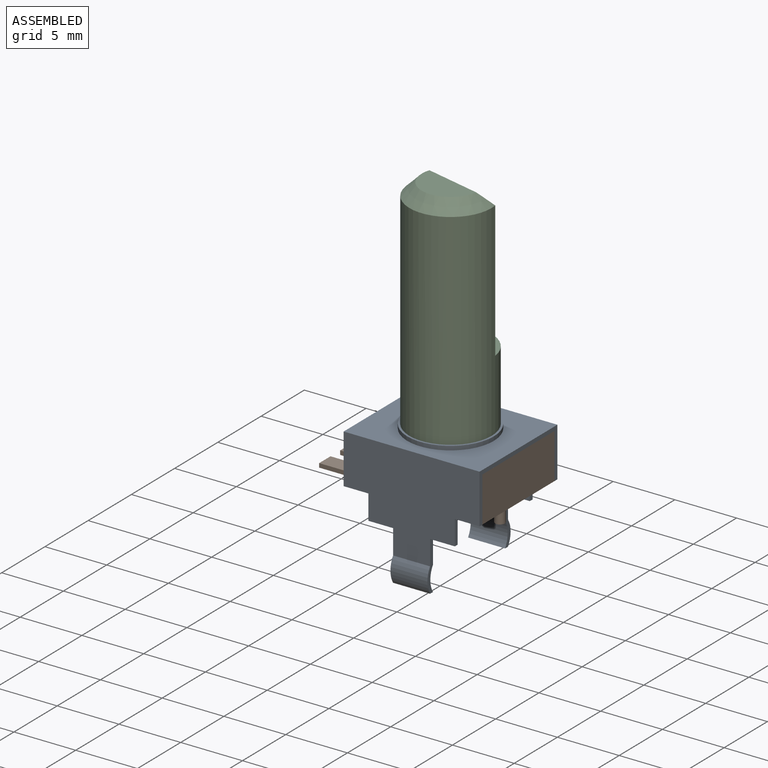
[diagram: assembled view]
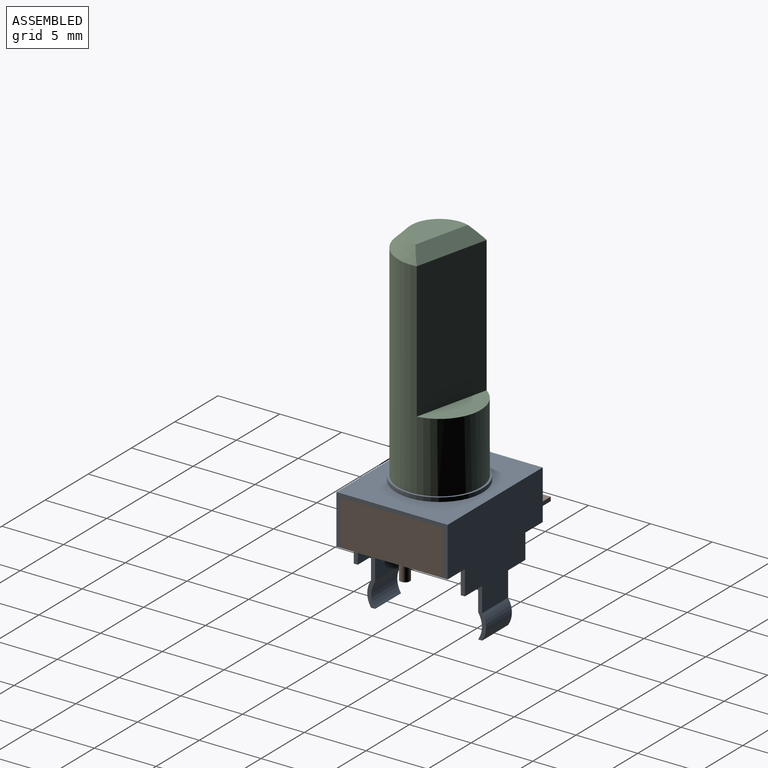
[diagram: assembled view, second angle]
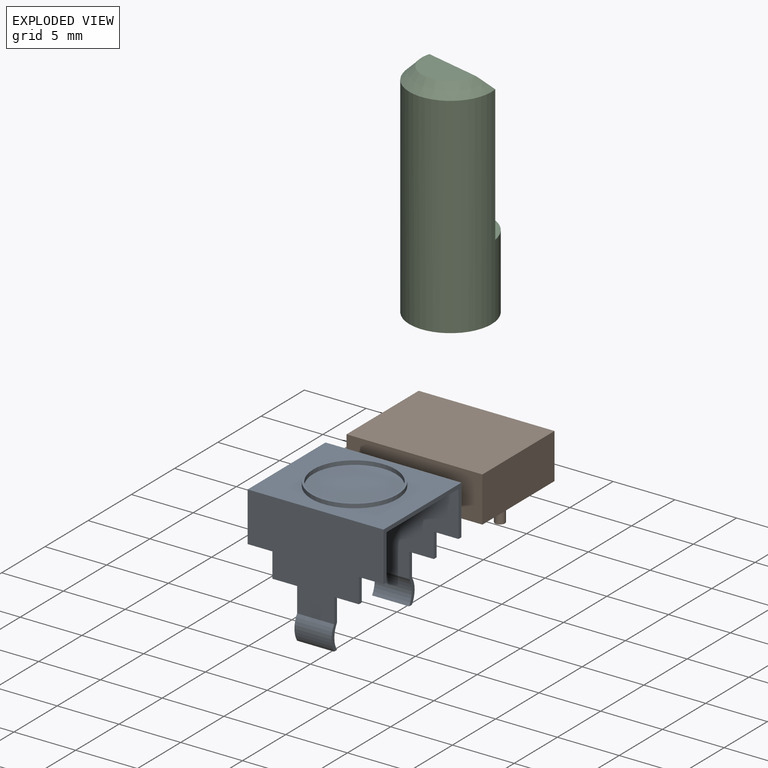
[diagram: exploded view]
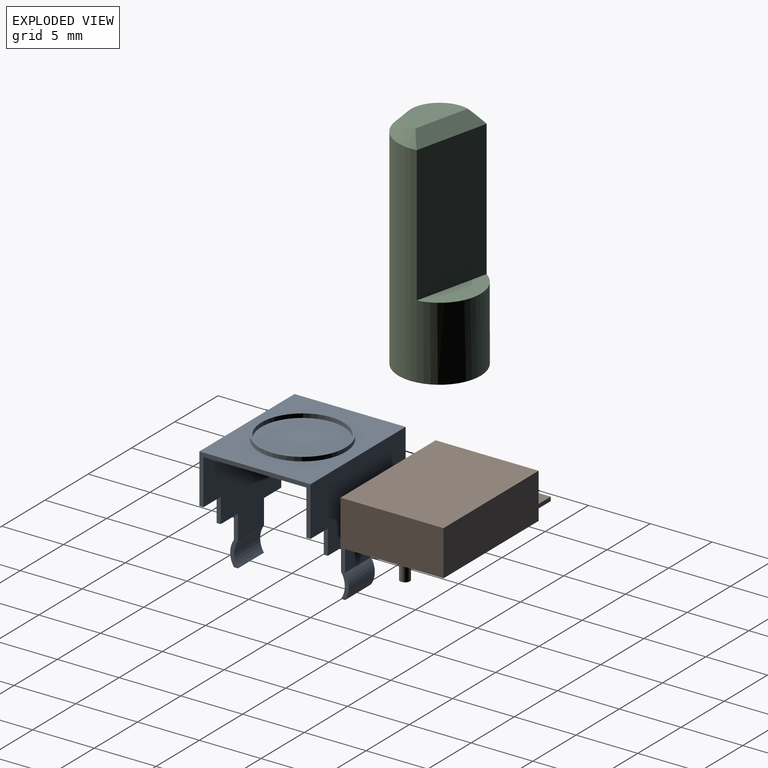
[diagram: exploded view, second angle]
ASSEMBLY  parts=3 mates=2
PART A: 34 faces, bbox 11x9.6x10.3 mm
  f0: plane 4x0.64mm, normal (-1,0,0), area 1.3mm2, adj f2,f3,f12,f31,f32,f33
  f1: plane 4x0.64mm, normal (1,0,0), area 1.3mm2, adj f2,f3,f13,f31,f32,f33
  f2: plane 11x8mm, normal (0,-1,0), area 64mm2, adj f0,f1,f8,f9,f10,f11,f12,f13
  f3: plane 11x7.67mm, normal (0,1,0), area 60.4mm2, adj f0,f1,f9,f10,f11,f12,f13,f14
  f4: plane 11x7.67mm, normal (0,-1,0), area 60.4mm2, adj f5,f6,f9,f16,f17,f18,f19,f20
  f5: plane 4x0.64mm, normal (-1,0,0), area 1.3mm2, adj f4,f7,f20,f28,f29,f30
  f6: plane 4x0.64mm, normal (1,0,0), area 1.3mm2, adj f4,f7,f21,f28,f29,f30
  f7: plane 11x8mm, normal (0,1,0), area 64mm2, adj f5,f6,f8,f9,f16,f18,f19,f20
  f8: plane 11x9mm, normal (0,0,1), area 60.5mm2, adj f2,f7,f9,f16,f25
  f9: plane 9x4mm, normal (-1,0,0), area 5.4mm2, adj f2,f3,f4,f7,f8,f10,f17,f18
  f10: plane 2x0.33mm, normal (0,0,-1), area 0.7mm2, adj f2,f3,f9,f11
  f11: plane 2x0.33mm, normal (-1,0,0), area 0.7mm2, adj f2,f3,f10,f12
  f12: plane 2x0.33mm, normal (0,0,-1), area 0.7mm2, adj f0,f2,f3,f11
  f13: plane 2x0.33mm, normal (0,0,-1), area 0.7mm2, adj f1,f2,f3,f14
  f14: plane 2x0.33mm, normal (1,0,0), area 0.7mm2, adj f2,f3,f13,f15
  f15: plane 2x0.33mm, normal (0,0,-1), area 0.7mm2, adj f2,f3,f14,f16
  f16: plane 9x4mm, normal (1,0,0), area 5.4mm2, adj f2,f3,f4,f7,f8,f15,f17,f23
  f17: plane 11x8.34mm, normal (0,0,-1), area 91.7mm2, adj f3,f4,f9,f16
  f18: plane 2x0.33mm, normal (0,0,-1), area 0.7mm2, adj f4,f7,f9,f19
  f19: plane 2x0.33mm, normal (-1,0,0), area 0.7mm2, adj f4,f7,f18,f20
  f20: plane 2x0.33mm, normal (0,0,-1), area 0.7mm2, adj f4,f5,f7,f19
  f21: plane 2x0.33mm, normal (0,0,-1), area 0.7mm2, adj f4,f6,f7,f22
  f22: plane 2x0.33mm, normal (1,0,0), area 0.7mm2, adj f4,f7,f21,f23
  f23: plane 2x0.33mm, normal (0,0,-1), area 0.7mm2, adj f4,f7,f16,f22
  f24: cylinder r=3.33mm len=6.67mm, axis (0,0,-1), area 6.9mm2, adj f26,f27
  f25: cylinder r=3.5mm len=7mm, axis (0,0,-1), area 7.3mm2, adj f8,f26
  f26: plane 7x7mm, normal (0,0,1), area 3.5mm2, adj f24,f25
  f27: plane 6.67x6.67mm, normal (0,0,1), area 34.9mm2, adj f24
  f28: cylinder r=1.78mm len=3mm, axis (-1,0,0), area 6.4mm2, adj f5,f6,f7,f29
  f29: plane 3x0.33mm, normal (0,0,-1), area 1mm2, adj f5,f6,f28,f30
  f30: cylinder r=1.78mm len=3mm, axis (-1,0,0), area 6.4mm2, adj f4,f5,f6,f29
  f31: cylinder r=1.78mm len=3mm, axis (-1,0,0), area 6.4mm2, adj f0,f1,f2,f33
  f32: cylinder r=1.78mm len=3mm, axis (-1,0,0), area 6.4mm2, adj f0,f1,f3,f33
  f33: plane 3x0.33mm, normal (0,0,-1), area 1mm2, adj f0,f1,f31,f32
PART B: 22 faces, bbox 14x8.3x5.5 mm
  f0: plane 8.34x3.67mm, normal (-1,0,0), area 29.3mm2, adj f1,f2,f3,f5,f6,f7,f8,f10
  f1: plane 14x8.34mm, normal (0,0,-1), area 102.3mm2, adj f0,f2,f3,f4,f6,f7,f9,f10
  f2: plane 11x3.67mm, normal (0,-1,0), area 40.4mm2, adj f0,f1,f4,f5
  f3: plane 11x3.67mm, normal (0,1,0), area 40.4mm2, adj f0,f1,f4,f5
  f4: plane 8.34x3.67mm, normal (1,0,0), area 30.6mm2, adj f1,f2,f3,f5
  f5: plane 11x8.34mm, normal (0,0,1), area 91.7mm2, adj f0,f2,f3,f4
  f6: plane 3x0.33mm, normal (0,1,0), area 1mm2, adj f0,f1,f8,f9
  f7: plane 3x0.33mm, normal (0,-1,0), area 1mm2, adj f0,f1,f8,f9
  f8: plane 3x1.31mm, normal (0,0,1), area 3.9mm2, adj f0,f6,f7,f9
  f9: plane 1.31x0.33mm, normal (-1,0,0), area 0.4mm2, adj f1,f6,f7,f8
  f10: plane 3x0.33mm, normal (0,1,0), area 1mm2, adj f0,f1,f12,f13
  f11: plane 3x0.33mm, normal (0,-1,0), area 1mm2, adj f0,f1,f12,f13
  f12: plane 3x1.24mm, normal (0,0,1), area 3.7mm2, adj f0,f10,f11,f13
  f13: plane 1.24x0.33mm, normal (-1,0,0), area 0.4mm2, adj f1,f10,f11,f12
  f14: plane 3x0.33mm, normal (0,-1,0), area 1mm2, adj f0,f1,f15,f17
  f15: plane 3x1.31mm, normal (0,0,1), area 3.9mm2, adj f0,f14,f16,f17
  f16: plane 3x0.33mm, normal (0,1,0), area 1mm2, adj f0,f1,f15,f17
  f17: plane 1.31x0.33mm, normal (-1,0,0), area 0.4mm2, adj f1,f14,f15,f16
  f18: cylinder r=0.4mm len=1.8mm, axis (0,0,1), area 4.5mm2, adj f1,f19
  f19: plane 0.8x0.8mm, normal (0,0,-1), area 0.5mm2, adj f18
  f20: cylinder r=0.4mm len=1.8mm, axis (0,0,1), area 4.5mm2, adj f1,f21
  f21: plane 0.8x0.8mm, normal (0,0,-1), area 0.5mm2, adj f20
PART C: 7 faces, bbox 6.8x6.8x18.1 mm
  f0: cone r=2.33mm half-angle=45deg, axis (0,0,-1), area 14.5mm2, adj f1,f2,f6
  f1: cylinder r=3.33mm len=17mm, axis (0,0,-1), area 268.1mm2, adj f0,f3,f4,f5
  f2: plane 4.67x2.54mm, normal (0,0,1), area 9.5mm2, adj f0,f6
  f3: plane 6.67x6.67mm, normal (0,0,-1), area 34.9mm2, adj f1
  f4: plane 11x6.22mm, normal (0,-1,0), area 68.4mm2, adj f1,f5,f6
  f5: plane 6.22x2.13mm, normal (0,0,1), area 9.6mm2, adj f1,f4
  f6: plane 6.34x1.12mm, normal (0,-0.71,0.71), area 7.7mm2, adj f0,f2,f4
PLACE A t=(-2.6,-3.54,-3.05)mm
PLACE B t=(-2.6,-3.54,-3.05)mm
PLACE C rot(axis=(0,0,1),166.8deg) t=(-1.64,4.69,-3.05)mm
MATE fastened A.f24 <-> B.f5  axis (0,0,-1) through (-2.6,0.63,-3.38)mm
MATE revolute C.f0 <-> A.f24  axis (0,0,-1) through (-2.6,0.63,-3.05)mm
